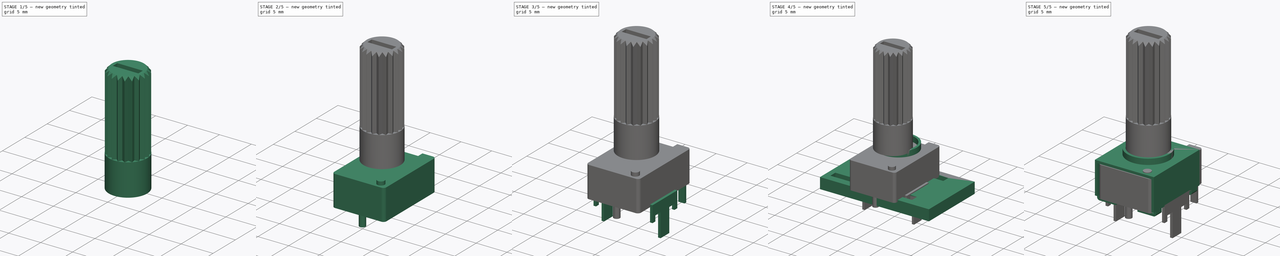
[diagram: build sequence overview — one tinted view per stage of 5, left to right]
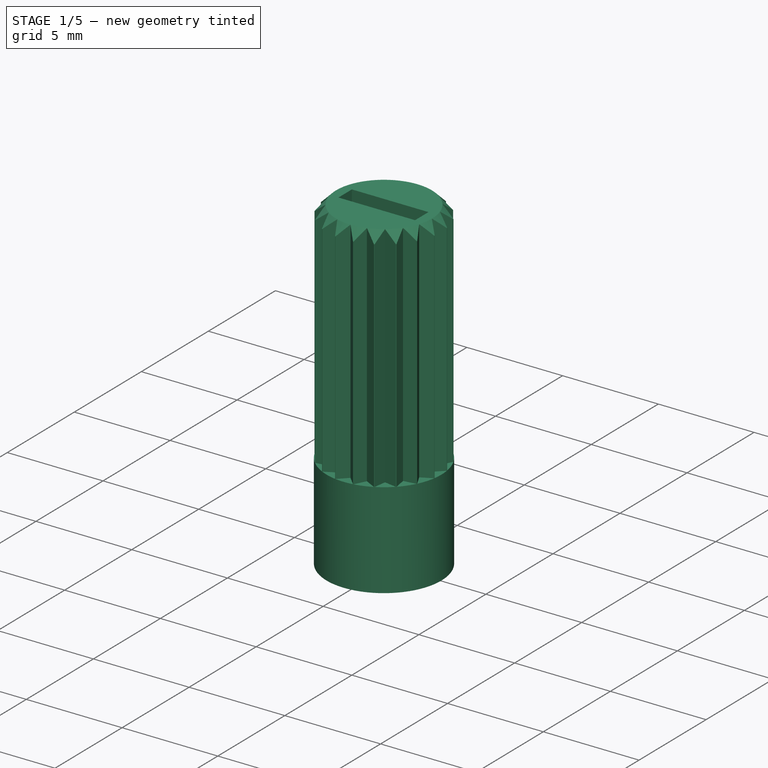
[diagram: stage 1 of 5 — iso view after this stage's code; geometry added in this stage tinted green]
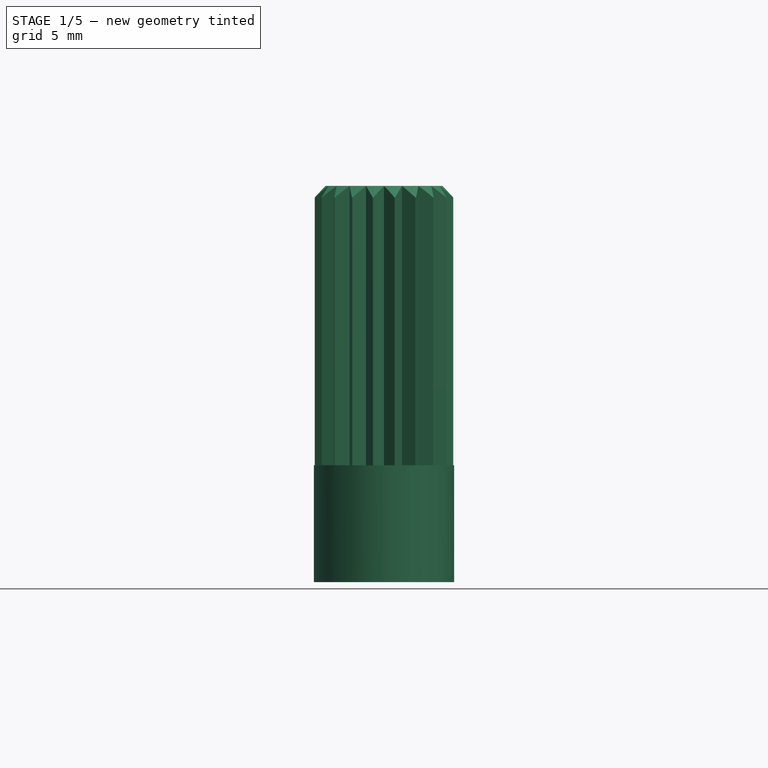
[diagram: stage 1 of 5 — front view after this stage's code; geometry added in this stage tinted green]
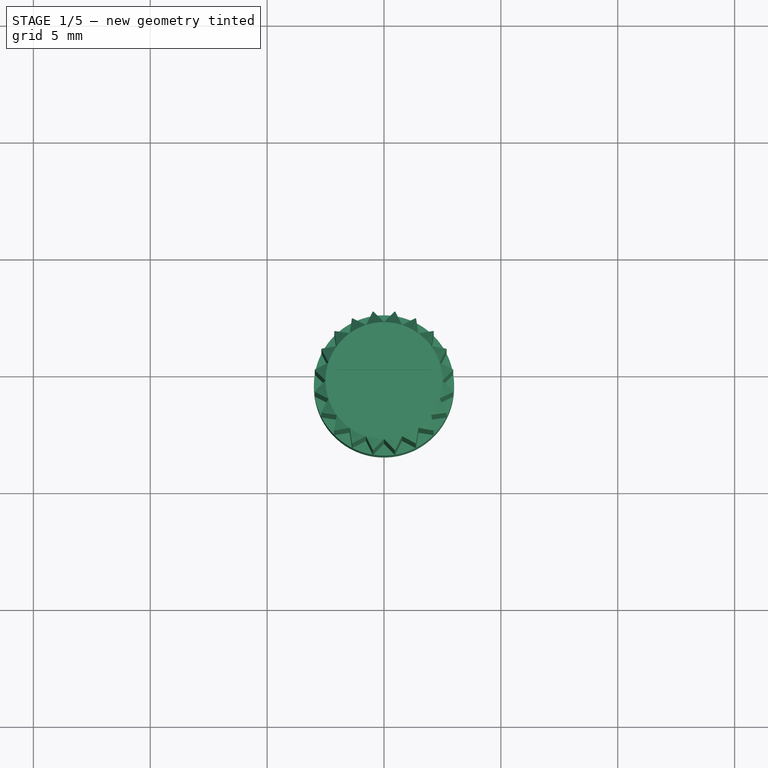
[diagram: stage 1 of 5 — top view after this stage's code; geometry added in this stage tinted green]
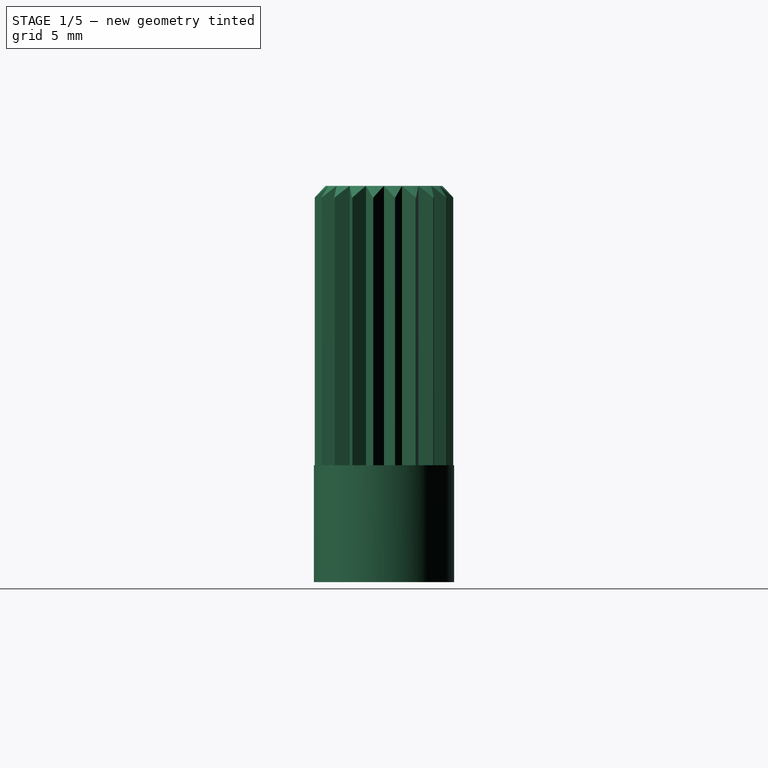
[diagram: stage 1 of 5 — right view after this stage's code; geometry added in this stage tinted green]
FCSTD DOCUMENT  (FreeCAD 0.14R3691 (Git))
Label: potenciometroG
License: CC-BY 3.0
LicenseURL: http://creativecommons.org/licenses/by/3.0/
objects: Part::Cylinder×9, Sketcher::SketchObject×9, Part::Cut×9, Part::Box×6, PartDesign::Pad×4, Part::MultiFuse×3, Part::Sweep×3, App::DocumentObjectGroup×2, Part::FeaturePython×1, Part::Chamfer×1, Part::Fillet×1
note: 50 computed .brp shape members not serialized (recipe doc carries the construction recipe); baked Part::Feature solids carry a one-line shape summary decoded from their .brp

FEATURE [Part::Cylinder] Cylinder  label="Cilindro"
  Angle = 360
  Height = 16.95
  Radius = 3
FEATURE [Sketcher::SketchObject] Sketch
  Placement = pos=(0,0,5) rot=(0,0,1;0rad)
  sketch-geometry (3):
    g0: LineSegment StartX=-0.589618 StartY=3.1 StartZ=0 EndX=0.589618 EndY=3.1 EndZ=0
    g1: LineSegment StartX=0.589618 StartY=3.1 StartZ=0 EndX=0 EndY=2.5 EndZ=0
    g2: LineSegment StartX=0 StartY=2.5 StartZ=0 EndX=-0.589618 EndY=3.1 EndZ=0
  constraints (9):
    c: Coincident(g0,g1)
    c: Coincident(g1,g2)
    c: Coincident(g2,g0)
    c: Horizontal(g0)
    c: Angle(g1,g2) = 1.55334
    c: Symmetric(g0,g0,g-2)
    c: DistanceY(g-1,g1) = 2.5
    c: PointOnObject(g1,g-2)
    c: DistanceY(g0,g1) = -0.6
FEATURE [PartDesign::Pad] Pad
  Length = 20
  Length2 = 100
  Placement = pos=(0,0,5) rot=(0,0,1;0rad)
  Sketch = -> Sketch
  Type = 0
FEATURE [Part::FeaturePython] Array  # Draft array (typed FeaturePython)
  Angle = 360
  ArrayType = 1
  Axis = (0,0,1)
  Base = -> Pad
  Center = (0,0,0)
  IntervalX = (1,0,0)
  IntervalY = (0,1,0)
  IntervalZ = (0,0,1)
  NumberPolar = 20
  NumberX = 2
  NumberY = 2
  NumberZ = 1
FEATURE [Part::Chamfer] Chamfer
  Base = -> Cylinder
  Edges = 1 edges r=0.5: [Edge1]
FEATURE [Part::Cut] Cut  label="MandoBase"
  Base = -> Chamfer
  Placement = pos=(0,-0.46,6) rot=(0,0,1;0rad)
  Tool = -> Array
FEATURE [App::DocumentObjectGroup] Grupo  label="GR_BloqueInterno"
  Group = -> [Fusion005]
FEATURE [Part::Box] Box006  label="Cubo006"
  Height = 10
  Length = 4
  Placement = pos=(-2,-1,22.3) rot=(0,0,1;0rad)
  Width = 1
FEATURE [Part::Cut] Cut008
  Base = -> Cut
  Tool = -> Box006
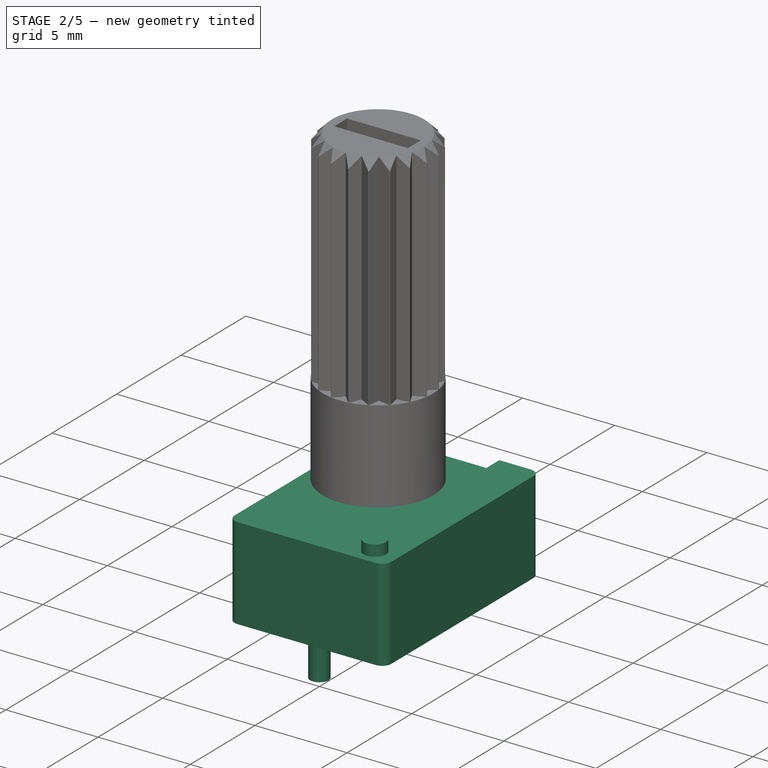
[diagram: stage 2 of 5 — iso view after this stage's code; geometry added in this stage tinted green]
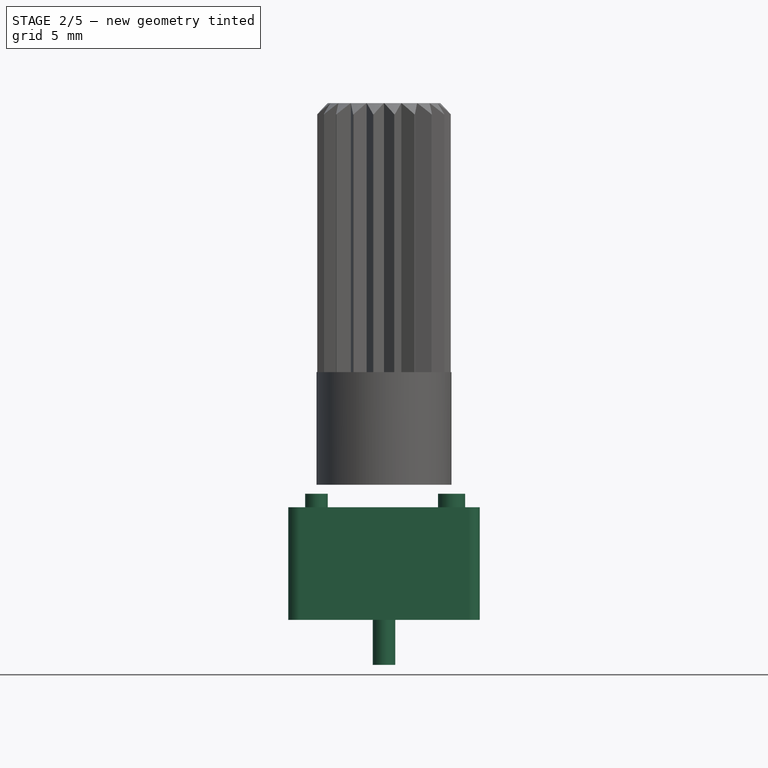
[diagram: stage 2 of 5 — front view after this stage's code; geometry added in this stage tinted green]
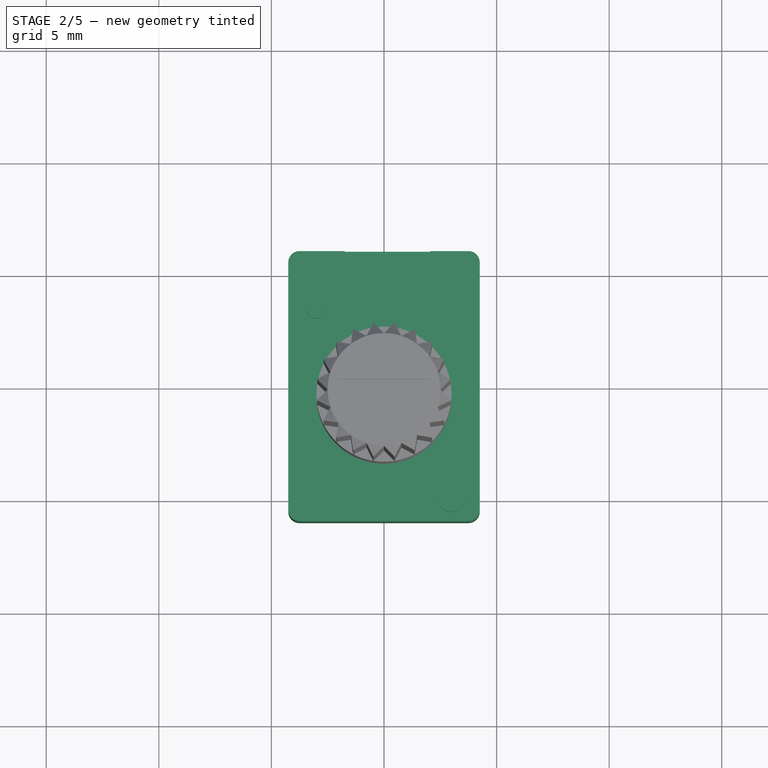
[diagram: stage 2 of 5 — top view after this stage's code; geometry added in this stage tinted green]
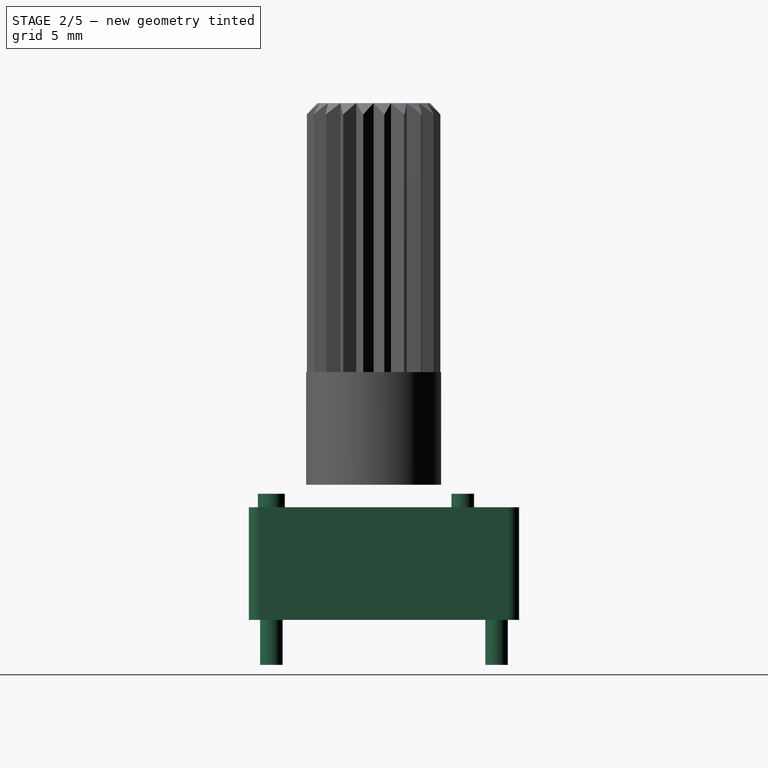
[diagram: stage 2 of 5 — right view after this stage's code; geometry added in this stage tinted green]
FEATURE [Part::Box] Box  label="Cubo"
  Height = 5
  Length = 8.5
  Width = 12
FEATURE [Part::Fillet] Fillet
  Base = -> Box
  Edges = 4 edges r=0.5: [Edge1,Edge3,Edge5,Edge7]
FEATURE [Part::Box] Box001  label="Cubo001"
  Height = 1.8
  Length = 3.8
  Placement = pos=(2.5,11,3.2) rot=(0,0,1;0rad)
  Width = 5
FEATURE [Part::Cylinder] Cylinder002  label="Pata2"
  Angle = 360
  Height = 2
  Placement = pos=(0,5,-2) rot=(0,0,1;0rad)
  Radius = 0.5
FEATURE [Part::Cylinder] Cylinder004  label="Cilindro002"
  Angle = 360
  Height = 0.6
  Placement = pos=(3,-5,5) rot=(0,0,1;0rad)
  Radius = 0.6
FEATURE [Part::Cylinder] Cylinder003  label="Cilindro001"
  Angle = 360
  Height = 0.6
  Placement = pos=(-3,3.5,5) rot=(0,0,1;0rad)
  Radius = 0.5
FEATURE [Part::Cylinder] Cylinder001  label="Pata1"
  Angle = 360
  Height = 2
  Placement = pos=(0,-5,-2) rot=(0,0,1;0rad)
  Radius = 0.5
FEATURE [Part::Cut] Cut001
  Base = -> Fillet
  Placement = pos=(-4.25,-6,0) rot=(0,0,1;0rad)
  Tool = -> Box001
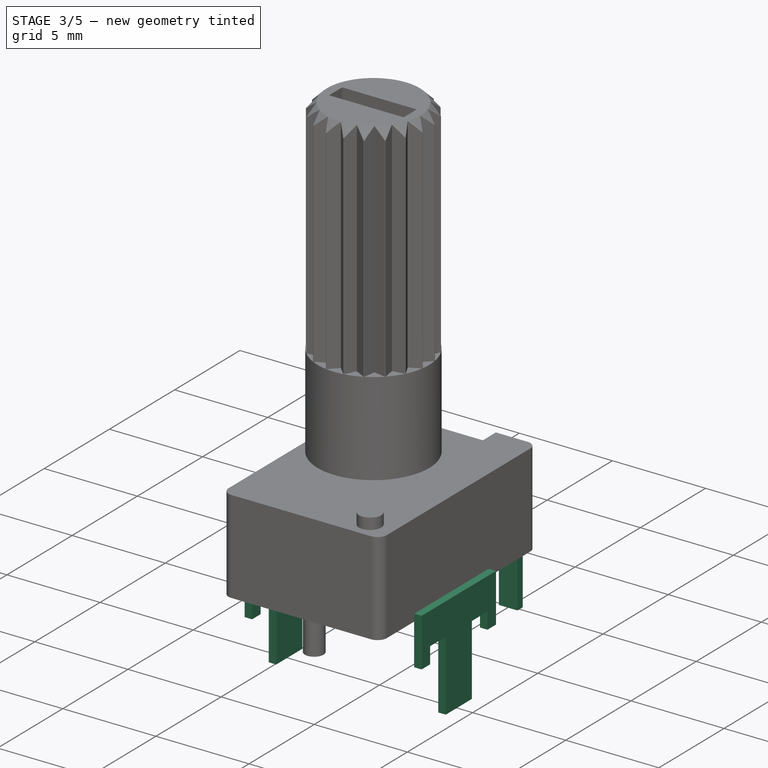
[diagram: stage 3 of 5 — iso view after this stage's code; geometry added in this stage tinted green]
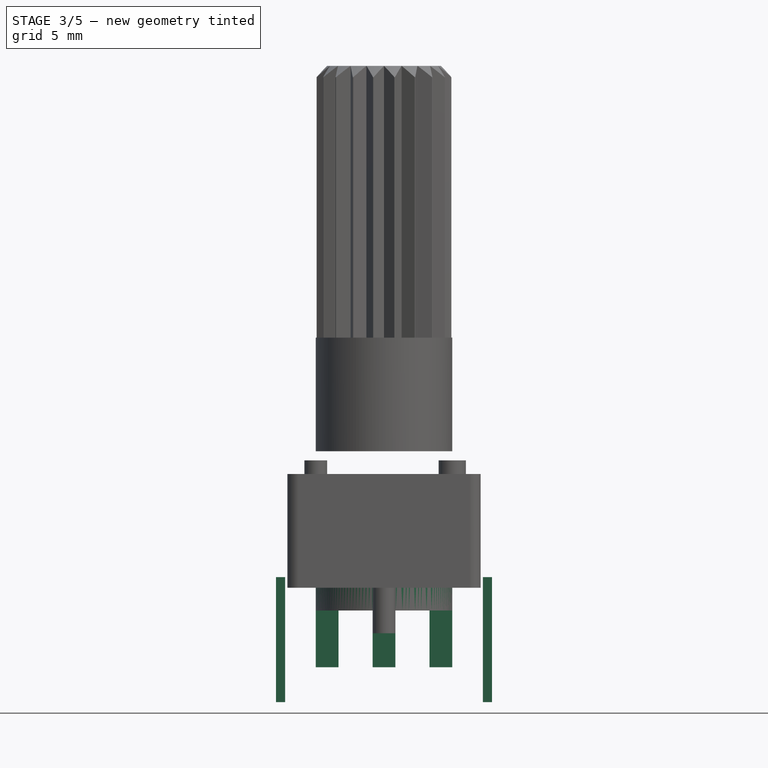
[diagram: stage 3 of 5 — front view after this stage's code; geometry added in this stage tinted green]
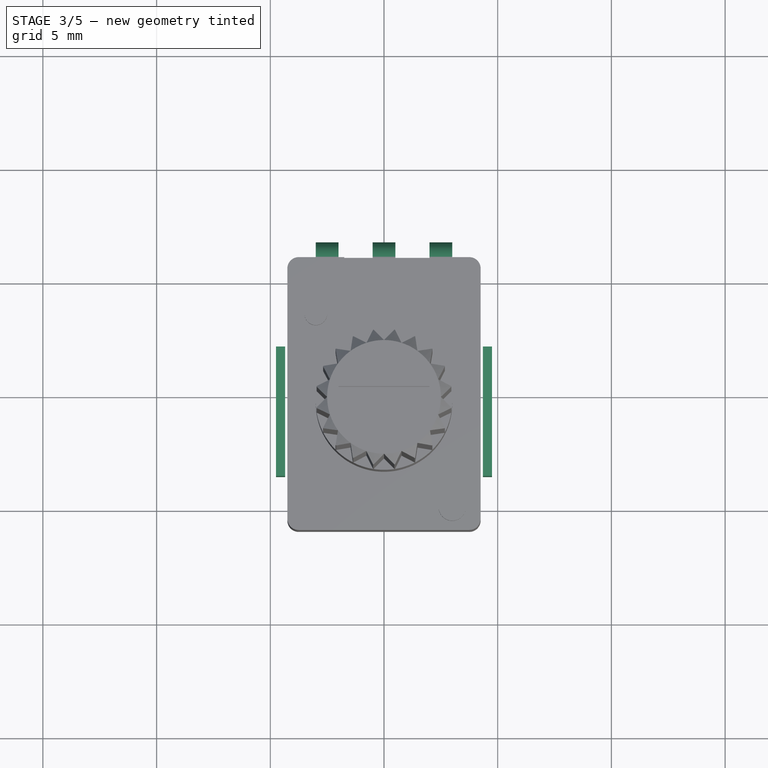
[diagram: stage 3 of 5 — top view after this stage's code; geometry added in this stage tinted green]
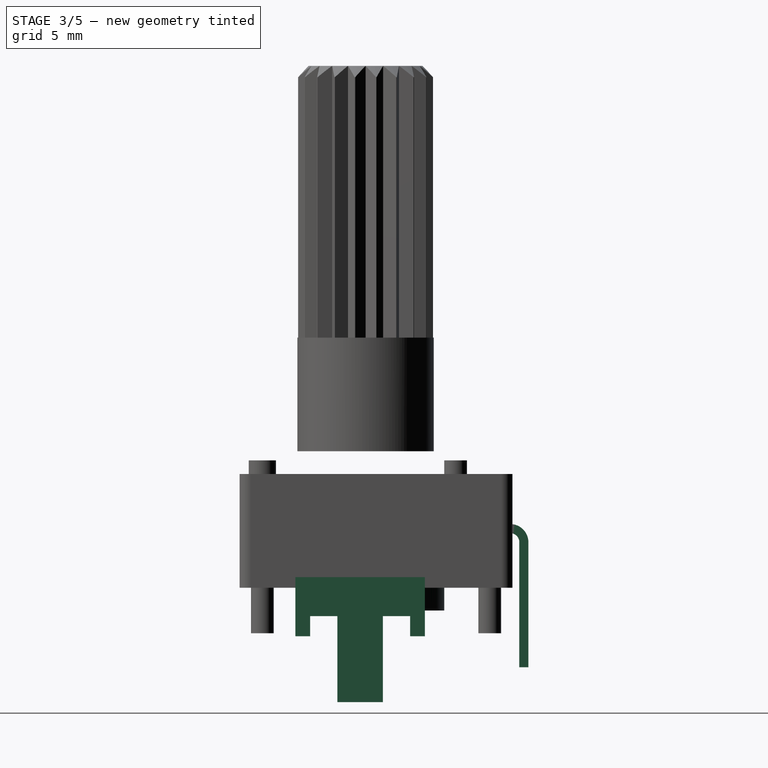
[diagram: stage 3 of 5 — right view after this stage's code; geometry added in this stage tinted green]
FEATURE [Part::Cylinder] Cylinder008  label="Cilindro006"
  Angle = 360
  Height = 3
  Placement = pos=(0,0,-1) rot=(0,0,1;0rad)
  Radius = 3
FEATURE [Sketcher::SketchObject] Sketch002
  Placement = pos=(4.35,-0.7,-1.4) rot=(0.57735,0.57735,0.57735;2.0944rad)
  sketch-geometry (12):
    g0: LineSegment StartX=-2.85 StartY=1.8668 StartZ=0 EndX=2.85 EndY=1.8668 EndZ=0
    g1: LineSegment StartX=2.85 StartY=1.8668 StartZ=0 EndX=2.85 EndY=-0.733202 EndZ=0
    g2: LineSegment StartX=2.85 StartY=-0.733202 StartZ=0 EndX=2.2 EndY=-0.733202 EndZ=0
    g3: LineSegment StartX=2.2 StartY=-0.733202 StartZ=0 EndX=2.2 EndY=0.147969 EndZ=0
    g4: LineSegment StartX=2.2 StartY=0.147969 StartZ=0 EndX=1 EndY=0.147969 EndZ=0
    g5: LineSegment StartX=1 StartY=0.147969 StartZ=0 EndX=1 EndY=-3.6332 EndZ=0
    g6: LineSegment StartX=1 StartY=-3.6332 StartZ=0 EndX=-1 EndY=-3.6332 EndZ=0
    g7: LineSegment StartX=-1 StartY=-3.6332 StartZ=0 EndX=-1 EndY=0.147969 EndZ=0
    g8: LineSegment StartX=-1 StartY=0.147969 StartZ=0 EndX=-2.2 EndY=0.147969 EndZ=0
    g9: LineSegment StartX=-2.2 StartY=0.147969 StartZ=0 EndX=-2.2 EndY=-0.733202 EndZ=0
    g10: LineSegment StartX=-2.2 StartY=-0.733202 StartZ=0 EndX=-2.85 EndY=-0.733202 EndZ=0
    g11: LineSegment StartX=-2.85 StartY=-0.733202 StartZ=0 EndX=-2.85 EndY=1.8668 EndZ=0
  constraints (29):
    c: Coincident(g0,g1)
    c: Coincident(g1,g2)
    c: Coincident(g2,g3)
    c: Coincident(g3,g4)
    c: Coincident(g4,g5)
    c: Coincident(g5,g6)
    c: Coincident(g6,g7)
    c: Coincident(g7,g8)
    c: Coincident(g8,g9)
    c: Coincident(g9,g10)
    c: Coincident(g10,g11)
    c: Coincident(g11,g0)
    c: Vertical(g11)
    c: Horizontal(g0)
    c: DistanceY(g0,g5) = -5.5
    c: Horizontal(g6)
    c: Symmetric(g0,g0,g-2)
    c: Symmetric(g10,g1,g-2)
    c: Horizontal(g10)
    c: Symmetric(g9,g2,g-2)
    c: Symmetric(g8,g3,g-2)
    c: Symmetric(g7,g4,g-2)
    c: Horizontal(g8)
    c: Vertical(g5)
    c: Symmetric(g5,g6,g-2)
    c: DistanceX(g0) = 5.7
    c: DistanceX(g6) = -2
    c: Vertical(g3)
    c: DistanceY(g11) = 2.6
FEATURE [PartDesign::Pad] Pad002
  Length = 0.4
  Length2 = 100
  Placement = pos=(4.35,-0.7,-1.4) rot=(0.57735,0.57735,0.57735;2.0944rad)
  Sketch = -> Sketch002
  Type = 0
FEATURE [Sketcher::SketchObject] Sketch003
  Placement = pos=(-4.75,-0.7,-1.4) rot=(0.57735,0.57735,0.57735;2.0944rad)
  sketch-geometry (12):
    g0: LineSegment StartX=-2.85 StartY=1.8668 StartZ=0 EndX=2.85 EndY=1.8668 EndZ=0
    g1: LineSegment StartX=2.85 StartY=1.8668 StartZ=0 EndX=2.85 EndY=-0.733202 EndZ=0
    g2: LineSegment StartX=2.85 StartY=-0.733202 StartZ=0 EndX=2.2 EndY=-0.733202 EndZ=0
    g3: LineSegment StartX=2.2 StartY=-0.733202 StartZ=0 EndX=2.2 EndY=0.147969 EndZ=0
    g4: LineSegment StartX=2.2 StartY=0.147969 StartZ=0 EndX=1 EndY=0.147969 EndZ=0
    g5: LineSegment StartX=1 StartY=0.147969 StartZ=0 EndX=1 EndY=-3.6332 EndZ=0
    g6: LineSegment StartX=1 StartY=-3.6332 StartZ=0 EndX=-1 EndY=-3.6332 EndZ=0
    g7: LineSegment StartX=-1 StartY=-3.6332 StartZ=0 EndX=-1 EndY=0.147969 EndZ=0
    g8: LineSegment StartX=-1 StartY=0.147969 StartZ=0 EndX=-2.2 EndY=0.147969 EndZ=0
    g9: LineSegment StartX=-2.2 StartY=0.147969 StartZ=0 EndX=-2.2 EndY=-0.733202 EndZ=0
    g10: LineSegment StartX=-2.2 StartY=-0.733202 StartZ=0 EndX=-2.85 EndY=-0.733202 EndZ=0
    g11: LineSegment StartX=-2.85 StartY=-0.733202 StartZ=0 EndX=-2.85 EndY=1.8668 EndZ=0
  constraints (29):
    c: Coincident(g0,g1)
    c: Coincident(g1,g2)
    c: Coincident(g2,g3)
    c: Coincident(g3,g4)
    c: Coincident(g4,g5)
    c: Coincident(g5,g6)
    c: Coincident(g6,g7)
    c: Coincident(g7,g8)
    c: Coincident(g8,g9)
    c: Coincident(g9,g10)
    c: Coincident(g10,g11)
    c: Coincident(g11,g0)
    c: Vertical(g11)
    c: Horizontal(g0)
    c: DistanceY(g0,g5) = -5.5
    c: Horizontal(g6)
    c: Symmetric(g0,g0,g-2)
    c: Symmetric(g10,g1,g-2)
    c: Horizontal(g10)
    c: Symmetric(g9,g2,g-2)
    c: Symmetric(g8,g3,g-2)
    c: Symmetric(g7,g4,g-2)
    c: Horizontal(g8)
    c: Vertical(g5)
    c: Symmetric(g5,g6,g-2)
    c: DistanceX(g0) = 5.7
    c: DistanceX(g6) = -2
    c: Vertical(g3)
    c: DistanceY(g11) = 2.6
FEATURE [PartDesign::Pad] Pad004
  Length = 0.4
  Length2 = 100
  Placement = pos=(-4.75,-0.7,-1.4) rot=(0.57735,0.57735,0.57735;2.0944rad)
  Sketch = -> Sketch003
  Type = 0
FEATURE [Sketcher::SketchObject] Sketch004  label="Skt_Seccion"
  sketch-geometry (4):
    g0: LineSegment StartX=-0.5 StartY=0.2 StartZ=0 EndX=0.5 EndY=0.2 EndZ=0
    g1: LineSegment StartX=0.5 StartY=0.2 StartZ=0 EndX=0.5 EndY=-0.2 EndZ=0
    g2: LineSegment StartX=0.5 StartY=-0.2 StartZ=0 EndX=-0.5 EndY=-0.2 EndZ=0
    g3: LineSegment StartX=-0.5 StartY=-0.2 StartZ=0 EndX=-0.5 EndY=0.2 EndZ=0
  constraints (11):
    c: Coincident(g0,g1)
    c: Coincident(g1,g2)
    c: Coincident(g2,g3)
    c: Coincident(g3,g0)
    c: Horizontal(g0)
    c: Horizontal(g2)
    c: Vertical(g1)
    c: Vertical(g3)
    c: Symmetric(g0,g1,g-1)
    c: DistanceY(g3) = 0.4
    c: DistanceX(g2) = -1
FEATURE [Sketcher::SketchObject] Sketch005  label="Skt_Path"
  Placement = pos=(0,0,0) rot=(0.57735,0.57735,0.57735;2.0944rad)
  sketch-geometry (3):
    g0: LineSegment StartX=-1.2 StartY=6.1 StartZ=0 EndX=-0.6 EndY=6.1 EndZ=0
    g1: LineSegment StartX=0 StartY=5.5 StartZ=0 EndX=0 EndY=0 EndZ=0
    g2: ArcOfCircle CenterX=-0.6 CenterY=5.5 CenterZ=0 NormalX=0 NormalY=0 NormalZ=1 Radius=0.6 StartAngle=0 EndAngle=1.5708
  constraints (8):
    c: Horizontal(g0)
    c: Coincident(g1,g-1)
    c: Vertical(g1)
    c: Tangent(g0,g2)
    c: Tangent(g1,g2)
    c: Radius(g2) = 0.6
    c: DistanceX(g0) = 0.6
    c: DistanceY(g1) = -5.5
FEATURE [Part::Sweep] Sweep001  label="PataCon1"
  Frenet = false
  Placement = pos=(2.5,6.5,-3.5) rot=(0,0,1;0rad)
  Sections = -> [Sketch004]
  Solid = true
  Spine = -> Sketch005 [Edge1,Edge2,Edge3]
  Transition = 1
FEATURE [Sketcher::SketchObject] Sketch006  label="Skt_Path001"
  Placement = pos=(0,0,0) rot=(0.57735,0.57735,0.57735;2.0944rad)
  sketch-geometry (3):
    g0: LineSegment StartX=-1.2 StartY=6.1 StartZ=0 EndX=-0.6 EndY=6.1 EndZ=0
    g1: LineSegment StartX=0 StartY=5.5 StartZ=0 EndX=0 EndY=0 EndZ=0
    g2: ArcOfCircle CenterX=-0.6 CenterY=5.5 CenterZ=0 NormalX=0 NormalY=0 NormalZ=1 Radius=0.6 StartAngle=0 EndAngle=1.5708
  constraints (8):
    c: Horizontal(g0)
    c: Coincident(g1,g-1)
    c: Vertical(g1)
    c: Tangent(g0,g2)
    c: Tangent(g1,g2)
    c: Radius(g2) = 0.6
    c: DistanceX(g0) = 0.6
    c: DistanceY(g1) = -5.5
FEATURE [Sketcher::SketchObject] Sketch007  label="Skt_Seccion001"
  sketch-geometry (4):
    g0: LineSegment StartX=-0.5 StartY=0.2 StartZ=0 EndX=0.5 EndY=0.2 EndZ=0
    g1: LineSegment StartX=0.5 StartY=0.2 StartZ=0 EndX=0.5 EndY=-0.2 EndZ=0
    g2: LineSegment StartX=0.5 StartY=-0.2 StartZ=0 EndX=-0.5 EndY=-0.2 EndZ=0
    g3: LineSegment StartX=-0.5 StartY=-0.2 StartZ=0 EndX=-0.5 EndY=0.2 EndZ=0
  constraints (11):
    c: Coincident(g0,g1)
    c: Coincident(g1,g2)
    c: Coincident(g2,g3)
    c: Coincident(g3,g0)
    c: Horizontal(g0)
    c: Horizontal(g2)
    c: Vertical(g1)
    c: Vertical(g3)
    c: Symmetric(g0,g1,g-1)
    c: DistanceY(g3) = 0.4
    c: DistanceX(g2) = -1
FEATURE [Sketcher::SketchObject] Sketch008  label="Skt_Path002"
  Placement = pos=(0,0,0) rot=(0.57735,0.57735,0.57735;2.0944rad)
  sketch-geometry (3):
    g0: LineSegment StartX=-1.2 StartY=6.1 StartZ=0 EndX=-0.6 EndY=6.1 EndZ=0
    g1: LineSegment StartX=0 StartY=5.5 StartZ=0 EndX=0 EndY=0 EndZ=0
    g2: ArcOfCircle CenterX=-0.6 CenterY=5.5 CenterZ=0 NormalX=0 NormalY=0 NormalZ=1 Radius=0.6 StartAngle=0 EndAngle=1.5708
  constraints (8):
    c: Horizontal(g0)
    c: Coincident(g1,g-1)
    c: Vertical(g1)
    c: Tangent(g0,g2)
    c: Tangent(g1,g2)
    c: Radius(g2) = 0.6
    c: DistanceX(g0) = 0.6
    c: DistanceY(g1) = -5.5
FEATURE [Sketcher::SketchObject] Sketch009  label="Skt_Seccion002"
  sketch-geometry (4):
    g0: LineSegment StartX=-0.5 StartY=0.2 StartZ=0 EndX=0.5 EndY=0.2 EndZ=0
    g1: LineSegment StartX=0.5 StartY=0.2 StartZ=0 EndX=0.5 EndY=-0.2 EndZ=0
    g2: LineSegment StartX=0.5 StartY=-0.2 StartZ=0 EndX=-0.5 EndY=-0.2 EndZ=0
    g3: LineSegment StartX=-0.5 StartY=-0.2 StartZ=0 EndX=-0.5 EndY=0.2 EndZ=0
  constraints (11):
    c: Coincident(g0,g1)
    c: Coincident(g1,g2)
    c: Coincident(g2,g3)
    c: Coincident(g3,g0)
    c: Horizontal(g0)
    c: Horizontal(g2)
    c: Vertical(g1)
    c: Vertical(g3)
    c: Symmetric(g0,g1,g-1)
    c: DistanceY(g3) = 0.4
    c: DistanceX(g2) = -1
FEATURE [Part::Sweep] Sweep003  label="PataCon3"
  Frenet = false
  Placement = pos=(-2.5,6.5,-3.5) rot=(0,0,1;0rad)
  Sections = -> [Sketch009]
  Solid = true
  Spine = -> Sketch008 [Edge1,Edge2,Edge3]
  Transition = 1
FEATURE [Part::Sweep] Sweep002  label="PataCon2"
  Frenet = false
  Placement = pos=(0,6.5,-3.5) rot=(0,0,1;0rad)
  Sections = -> [Sketch007]
  Solid = true
  Spine = -> Sketch006 [Edge1,Edge2,Edge3]
  Transition = 1
FEATURE [App::DocumentObjectGroup] Grupo002  label="GR_Conectores"
  Group = -> [Sketch005,Sweep001,Sketch006,Sweep002,Sketch008,Sweep003]
FEATURE [Part::MultiFuse] Fusion005
  Shapes = -> [Cut001,Cylinder002,Cylinder004,Cylinder003,Cylinder001]
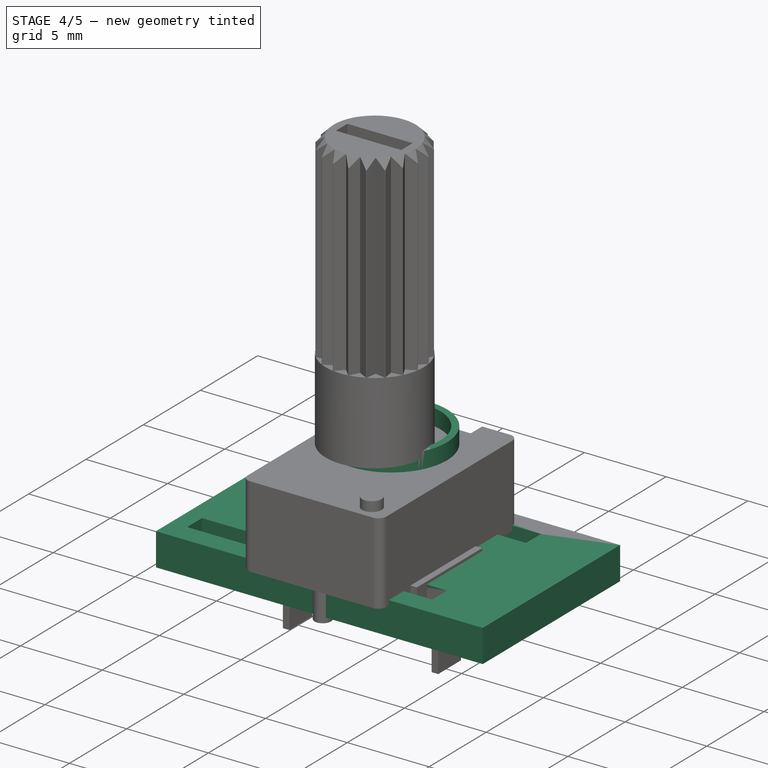
[diagram: stage 4 of 5 — iso view after this stage's code; geometry added in this stage tinted green]
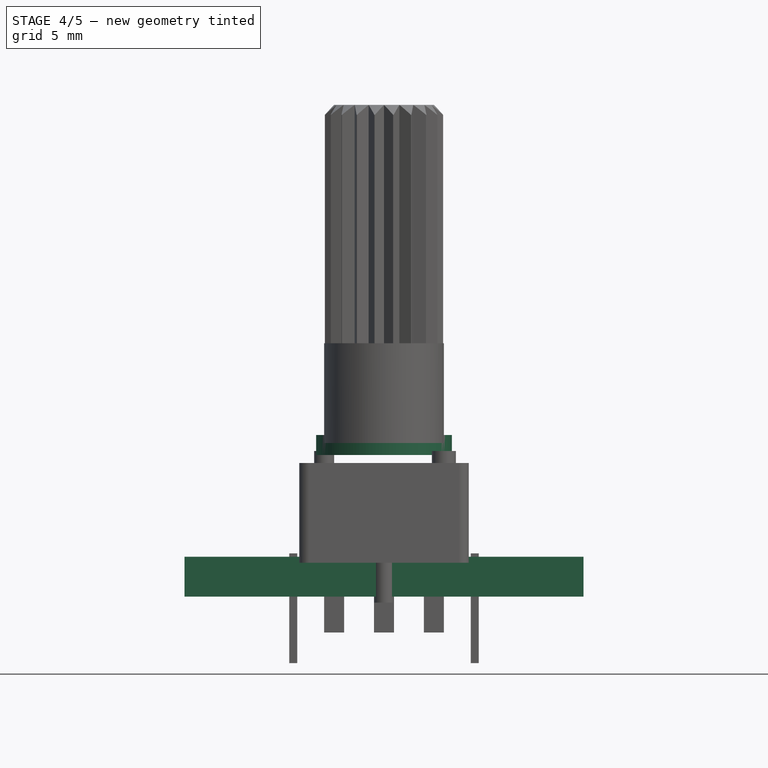
[diagram: stage 4 of 5 — front view after this stage's code; geometry added in this stage tinted green]
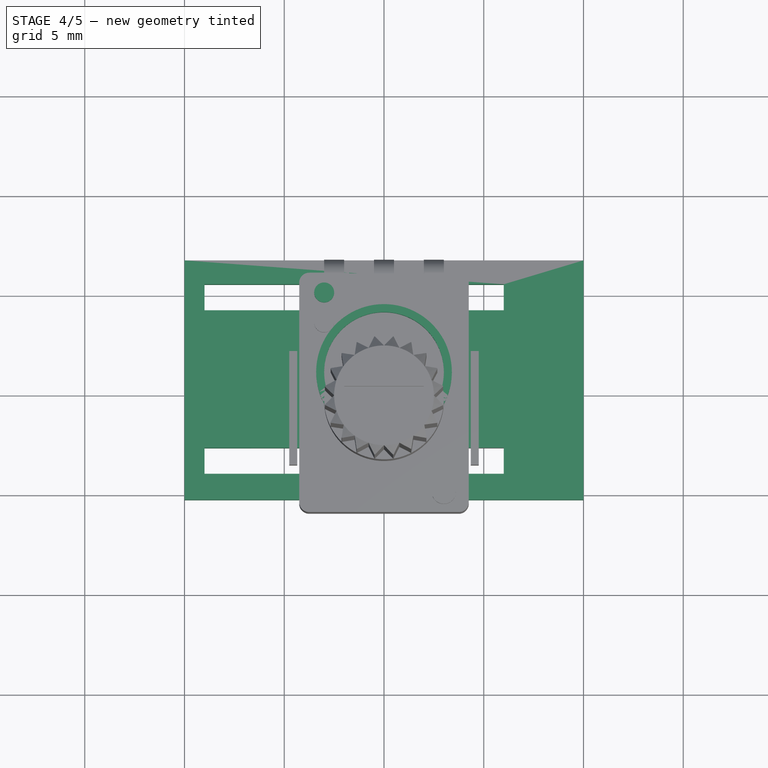
[diagram: stage 4 of 5 — top view after this stage's code; geometry added in this stage tinted green]
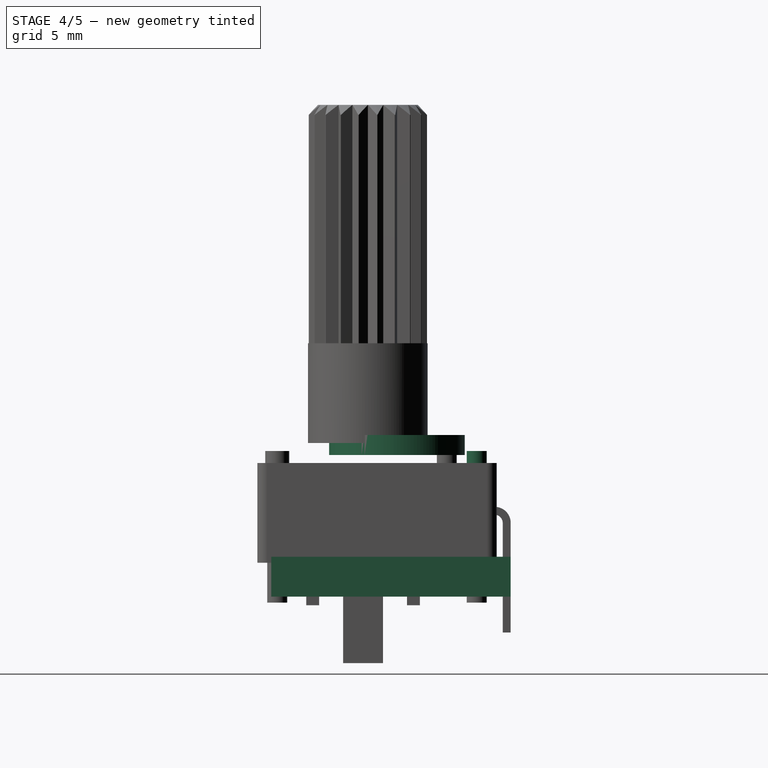
[diagram: stage 4 of 5 — right view after this stage's code; geometry added in this stage tinted green]
FEATURE [Part::Box] Box003  label="Cubo003"
  Height = 2
  Length = 20
  Placement = pos=(-10,-5.3,-1.7) rot=(0,0,1;0rad)
  Width = 12
FEATURE [Part::Box] Box004  label="Cubo004"
  Height = 3
  Length = 15
  Placement = pos=(-9,-4,-2) rot=(0,0,1;0rad)
  Width = 1.3
FEATURE [Part::Box] Box005  label="Cubo005"
  Height = 3
  Length = 15
  Placement = pos=(-9,4.2,-2) rot=(0,0,1;0rad)
  Width = 1.3
FEATURE [Part::Cut] Cut002
  Base = -> Box003
  Tool = -> Box004
FEATURE [Part::Cut] Cut003
  Base = -> Cut002
  Tool = -> Box005
FEATURE [Part::Cylinder] Cylinder005  label="Cilindro003"
  Angle = 360
  Height = 0.6
  Placement = pos=(-3,5,5) rot=(0,0,1;0rad)
  Radius = 0.5
FEATURE [Part::Cylinder] Cylinder007  label="Cilindro005"
  Angle = 360
  Height = 1
  Radius = 3.4
FEATURE [Part::Cut] Cut007
  Base = -> Cylinder007
  Placement = pos=(0,1,5.4) rot=(0,0,1;0rad)
  Tool = -> Cylinder008
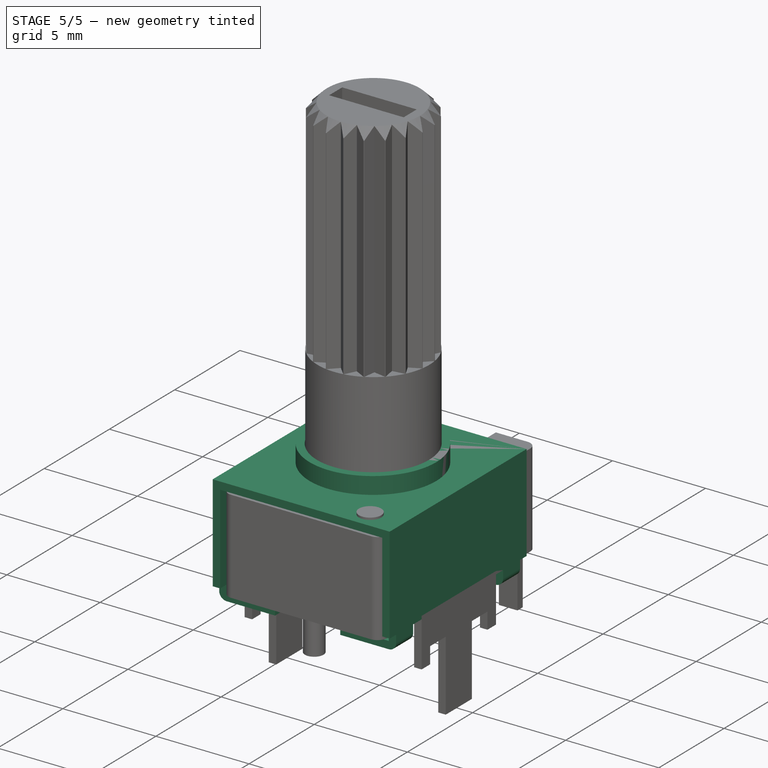
[diagram: stage 5 of 5 — iso view after this stage's code; geometry added in this stage tinted green]
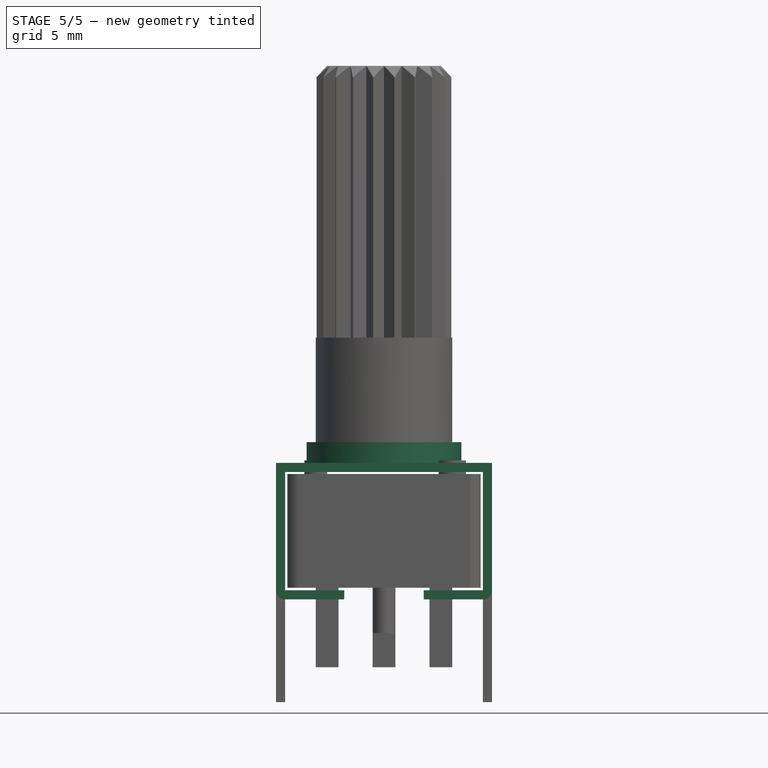
[diagram: stage 5 of 5 — front view after this stage's code; geometry added in this stage tinted green]
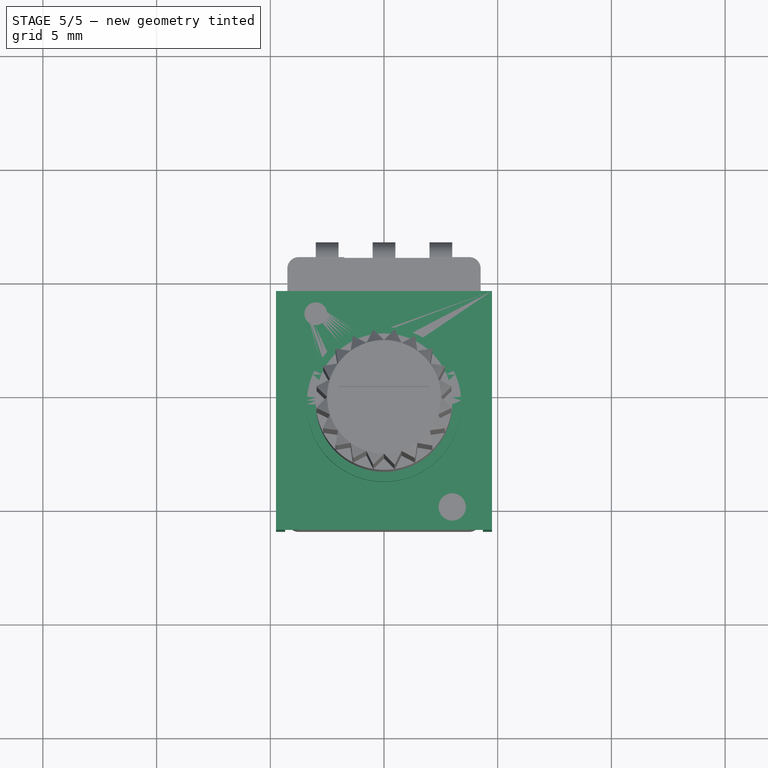
[diagram: stage 5 of 5 — top view after this stage's code; geometry added in this stage tinted green]
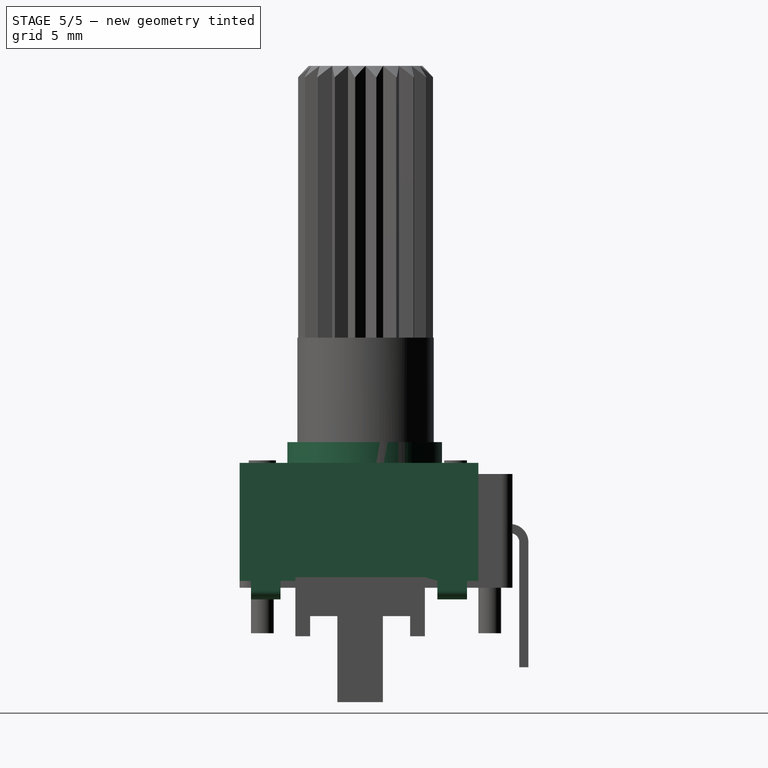
[diagram: stage 5 of 5 — right view after this stage's code; geometry added in this stage tinted green]
FEATURE [PartDesign::Pad] Pad001
  Length = 10.5
  Length2 = 100
  Placement = pos=(0,6,0) rot=(1,0,0;1.5708rad)
  Type = 0
FEATURE [Part::Cut] Cut004
  Base = -> Pad001
  Tool = -> Cut003
FEATURE [Part::Cylinder] Cylinder006  label="Cilindro004"
  Angle = 360
  Height = 0.6
  Placement = pos=(3,-3.5,5) rot=(0,0,1;0rad)
  Radius = 0.6
FEATURE [Part::Cut] Cut005
  Base = -> Cut004
  Tool = -> Cylinder005
FEATURE [Part::Cut] Cut006
  Base = -> Cut005
  Tool = -> Cylinder006
FEATURE [Part::MultiFuse] Fusion
  Placement = pos=(0,-1.5,0) rot=(0,0,1;0rad)
  Shapes = -> [Cut006,Cut007]
FEATURE [Part::MultiFuse] Fusion004  label="Sujeccion"
  Shapes = -> [Fusion,Pad002,Pad004]
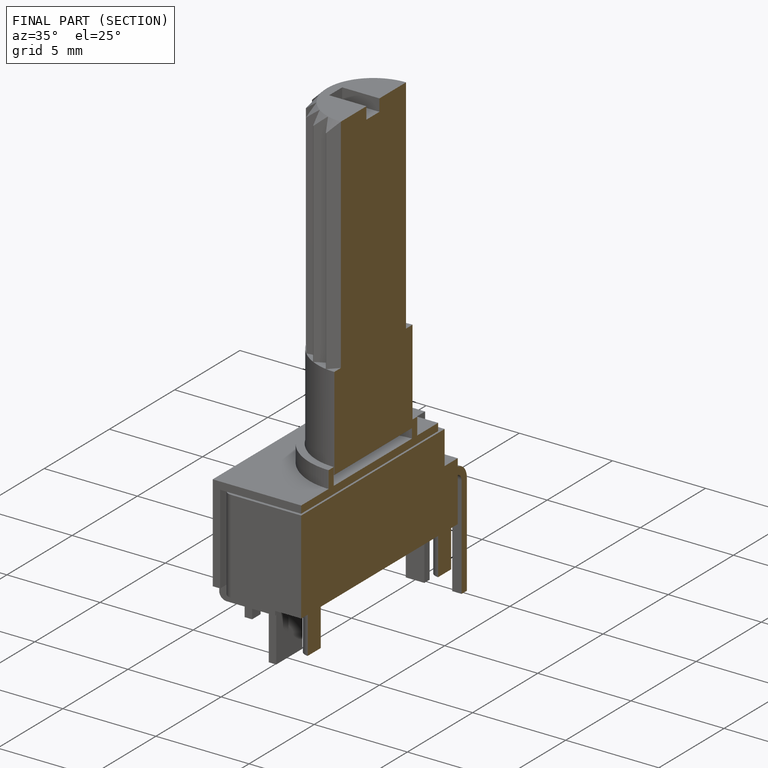
[diagram: finished part — half-section view (interior)]
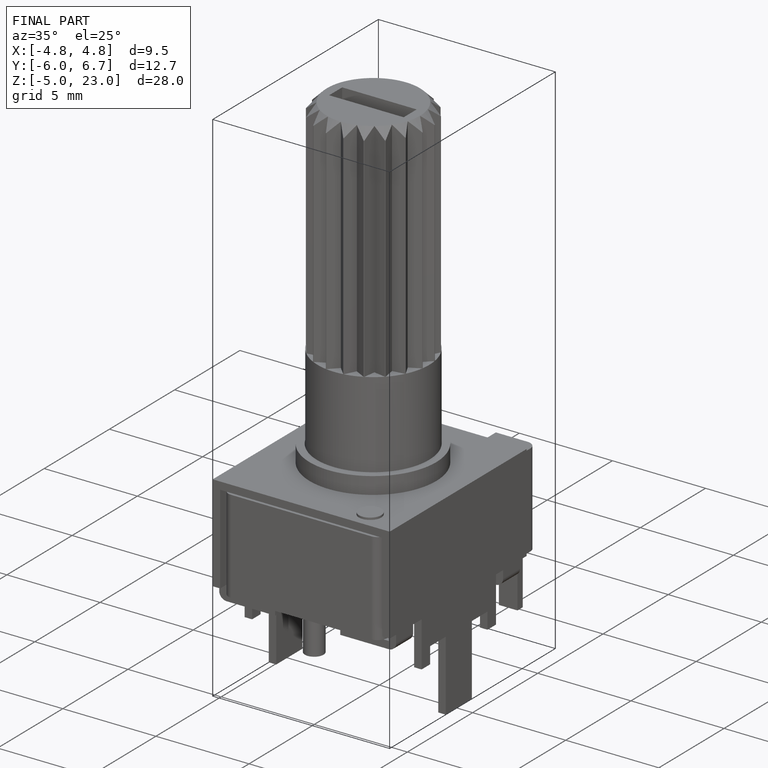
[diagram: finished part — iso view with bounding-box wireframe]
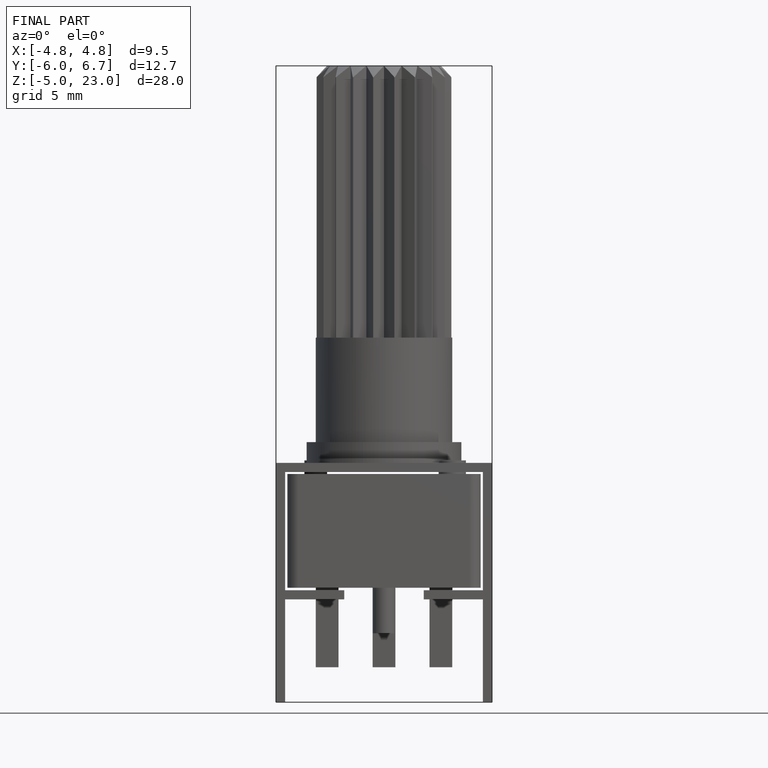
[diagram: finished part — front view with bounding-box wireframe]
